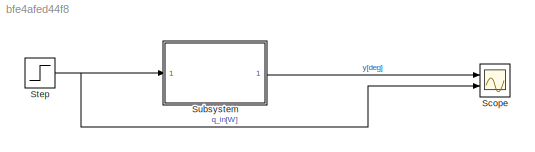
MODEL slx_bfe4afed44f8
KIND model
CONFIG AbsTol = auto
CONFIG EnableMultiTasking = off
CONFIG FixedStep = auto
CONFIG MaxStep = auto
CONFIG MinStep = auto
CONFIG RelTol = 1e-3
CONFIG SampleTimeConstraint = Unconstrained
CONFIG SolverName = VariableStepAuto
CONFIG StartTime = 0.0
CONFIG StopTime = Endtime
BLOCK [Scope] Scope
  Floating = off
  NumInputPorts = 2
  Ports = [2]
  ScopeSpecificationString = Simulink.scopes.TimeScopeBlockCfg('CurrentConfiguration', extmgr.ConfigurationSet(extmgr.Configuration('Core','General UI',true),extmgr.Configuration('Core','Source UI',true),extmgr.Configuration('Sources','WiredSimulink',true),extmgr.Configuration('Visuals','Time Domain',true,'SerializedDisplays',{struct('MinYLimReal','-190.9786','MaxYLimReal','1918.80737','YLabelReal','','MinYLimMag',' 0.00000',...<+1996ch>
BLOCK [Step] Step
  After = q_in
  SampleTime = 0
  Time = 100
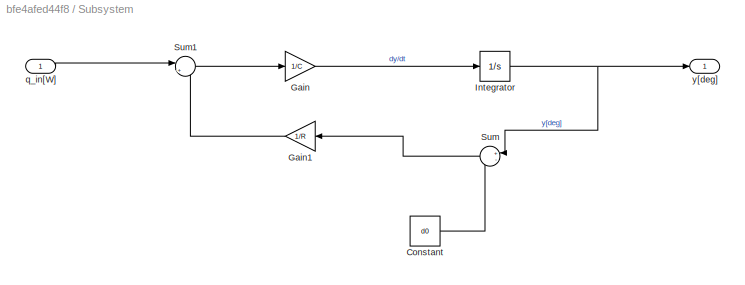
BLOCK [SubSystem] Subsystem
  Ports = [1, 1]
  RequestExecContextInheritance = off
BLOCK [Constant] Subsystem/Constant
  Value = d0
BLOCK [Gain] Subsystem/Gain
  Gain = 1/C
BLOCK [Gain] Subsystem/Gain1
  Gain = 1/R
BLOCK [Integrator] Subsystem/Integrator
  InitialCondition = d0
  Ports = [1, 1]
BLOCK [Sum] Subsystem/Sum
  Inputs = +-
  Ports = [2, 1]
BLOCK [Sum] Subsystem/Sum1
  Inputs = |+-
  Ports = [2, 1]
BLOCK [Inport] Subsystem/q_in[W]
BLOCK [Outport] Subsystem/y[deg]
NET Step:1 -> Scope:2, Subsystem:1
LINE Subsystem/Constant:1 -> Subsystem/Sum:2
LINE Subsystem/Gain1:1 -> Subsystem/Sum1:2
LINE Subsystem/Gain:1 -> Subsystem/Integrator:1
NET Subsystem/Integrator:1 -> Subsystem/Sum:1, Subsystem/y[deg]:1
LINE Subsystem/Sum1:1 -> Subsystem/Gain:1
LINE Subsystem/Sum:1 -> Subsystem/Gain1:1
LINE Subsystem/q_in[W]:1 -> Subsystem/Sum1:1
LINE Subsystem:1 -> Scope:1
note: NET lines group one-source signal fan-out (src -> all destinations, sorted); 1:1 wires keep LINE
